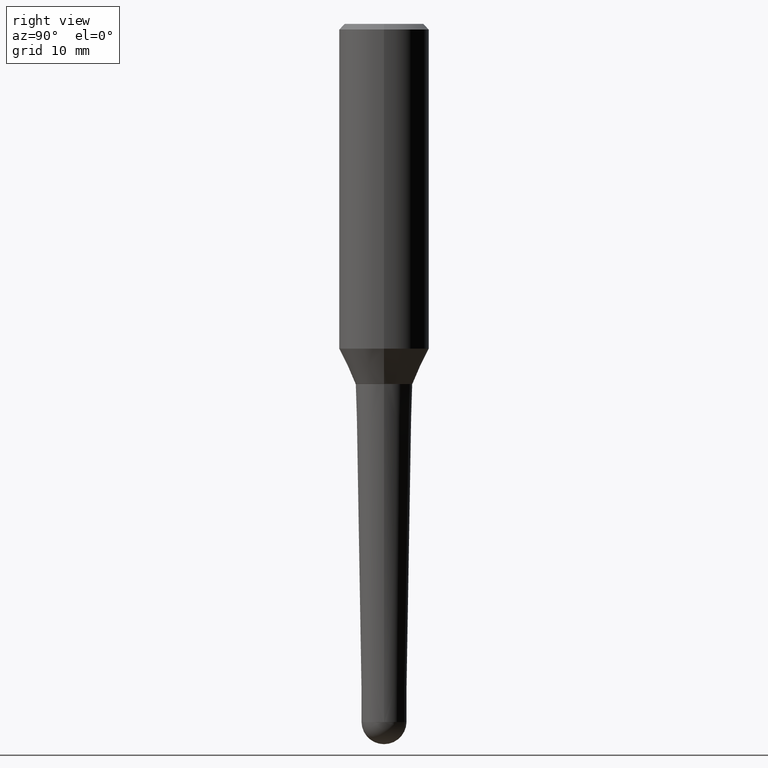
[diagram: clean part render]
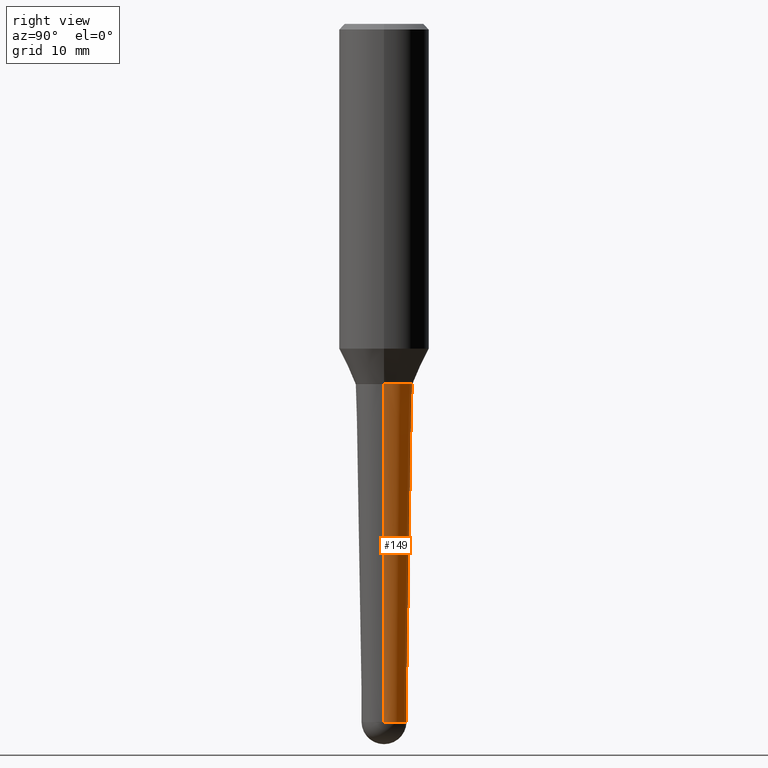
[diagram: same view with one face highlighted and labeled with its STEP entity id]
A machine part, right view. The second image highlights one B-rep face of the part: STEP entity #149.
In plain terms, the highlighted conical surface has half-angle 1 deg.
Its self-contained STEP definition (entity closure, byte-faithful):
#7 = CIRCLE ( 'NONE', #284, 0.1249809618945493112 ) ;
#9 = VERTEX_POINT ( 'NONE', #70 ) ;
#25 = CARTESIAN_POINT ( 'NONE',  ( 4.890937612370273194E-29, -6.982962677686291165E-15, -2.000000000000000000 ) ) ;
#28 = FACE_OUTER_BOUND ( 'NONE', #69, .T. ) ;
#31 = DIRECTION ( 'NONE',  ( 1.000000000000000000, -6.982962677686266711E-15, 0.000000000000000000 ) ) ;
#47 = ORIENTED_EDGE ( 'NONE', *, *, #168, .F. ) ;
#67 = AXIS2_PLACEMENT_3D ( 'NONE', #25, #205, #164 ) ;
#69 = EDGE_LOOP ( 'NONE', ( #176, #119, #80, #47, #432 ) ) ;
#70 = CARTESIAN_POINT ( 'NONE',  ( -0.1249809618945493112, -9.255582334932912889E-15, -3.877181550804660759 ) ) ;
#73 = VERTEX_POINT ( 'NONE', #239 ) ;
#74 = CARTESIAN_POINT ( 'NONE',  ( 9.481526538409310003E-29, -1.353710703194140102E-14, -3.877181550804660759 ) ) ;
#76 = AXIS2_PLACEMENT_3D ( 'NONE', #380, #101, #448 ) ;
#80 = ORIENTED_EDGE ( 'NONE', *, *, #237, .F. ) ;
#101 = DIRECTION ( 'NONE',  ( -2.445468806185136597E-29, 3.491481338843145583E-15, 1.000000000000000000 ) ) ;
#111 = VERTEX_POINT ( 'NONE', #347 ) ;
#119 = ORIENTED_EDGE ( 'NONE', *, *, #378, .T. ) ;
#123 = VECTOR ( 'NONE', #351, 39.37007874015748143 ) ;
#130 = LINE ( 'NONE', #204, #333 ) ;
#140 = DIRECTION ( 'NONE',  ( -2.445468806185136597E-29, 3.491481338843145583E-15, 1.000000000000000000 ) ) ;
#142 = DIRECTION ( 'NONE',  ( -2.445468806185136597E-29, 3.491481338843145583E-15, 1.000000000000000000 ) ) ;
#149 = ADVANCED_FACE ( 'NONE', ( #28 ), #210, .T. ) ;
#150 = CIRCLE ( 'NONE', #67, 0.1577472877458967193 ) ;
#164 = DIRECTION ( 'NONE',  ( 1.000000000000000000, -6.982962677686264344E-15, 0.000000000000000000 ) ) ;
#168 = EDGE_CURVE ( 'NONE', #321, #111, #130, .T. ) ;
#171 = CARTESIAN_POINT ( 'NONE',  ( 0.1249809618945493112, -1.124717526239724726E-14, -3.877181550804660759 ) ) ;
#174 = DIRECTION ( 'NONE',  ( 1.000000000000000000, -6.982962677686266711E-15, 0.000000000000000000 ) ) ;
#176 = ORIENTED_EDGE ( 'NONE', *, *, #366, .T. ) ;
#204 = CARTESIAN_POINT ( 'NONE',  ( 0.1249809618945493112, -1.440984442427236798E-14, -3.877181550804660759 ) ) ;
#205 = DIRECTION ( 'NONE',  ( -2.445468806185136597E-29, 3.491481338843145583E-15, 1.000000000000000000 ) ) ;
#210 = CONICAL_SURFACE ( 'NONE', #76, 0.1249809618945493112, 0.01745329251994322262 ) ;
#220 = AXIS2_PLACEMENT_3D ( 'NONE', #74, #142, #31 ) ;
#222 = VERTEX_POINT ( 'NONE', #445 ) ;
#237 = EDGE_CURVE ( 'NONE', #111, #222, #150, .T. ) ;
#239 = CARTESIAN_POINT ( 'NONE',  ( 8.727373923310620192E-16, 0.1249809618945357664, -3.877181550804661203 ) ) ;
#241 = CIRCLE ( 'NONE', #220, 0.1249809618945493112 ) ;
#278 = EDGE_CURVE ( 'NONE', #321, #73, #241, .T. ) ;
#284 = AXIS2_PLACEMENT_3D ( 'NONE', #457, #140, #174 ) ;
#319 = LINE ( 'NONE', #391, #123 ) ;
#321 = VERTEX_POINT ( 'NONE', #171 ) ;
#333 = VECTOR ( 'NONE', #384, 39.37007874015748143 ) ;
#347 = CARTESIAN_POINT ( 'NONE',  ( 0.1577472877458967193, -8.084506100522123376E-15, -2.000000000000000000 ) ) ;
#351 = DIRECTION ( 'NONE',  ( -0.01745240643728343879, 3.614956375479315570E-15, 0.9998476951563912696 ) ) ;
#366 = EDGE_CURVE ( 'NONE', #73, #9, #7, .T. ) ;
#378 = EDGE_CURVE ( 'NONE', #9, #222, #319, .T. ) ;
#380 = CARTESIAN_POINT ( 'NONE',  ( 9.481526538409310003E-29, -1.353710703194140102E-14, -3.877181550804660759 ) ) ;
#384 = DIRECTION ( 'NONE',  ( 0.01745240643728343879, 3.369080066536508461E-15, 0.9998476951563912696 ) ) ;
#391 = CARTESIAN_POINT ( 'NONE',  ( -0.1249809618945493112, -1.264906388611658269E-14, -3.877181550804660759 ) ) ;
#432 = ORIENTED_EDGE ( 'NONE', *, *, #278, .T. ) ;
#445 = CARTESIAN_POINT ( 'NONE',  ( -0.1577472877458967193, -5.862100783749240719E-15, -2.000000000000000000 ) ) ;
#448 = DIRECTION ( 'NONE',  ( 1.000000000000000000, -6.982962677686266711E-15, 0.000000000000000000 ) ) ;
#457 = CARTESIAN_POINT ( 'NONE',  ( 9.481526538409310003E-29, -1.353710703194140102E-14, -3.877181550804660759 ) ) ;